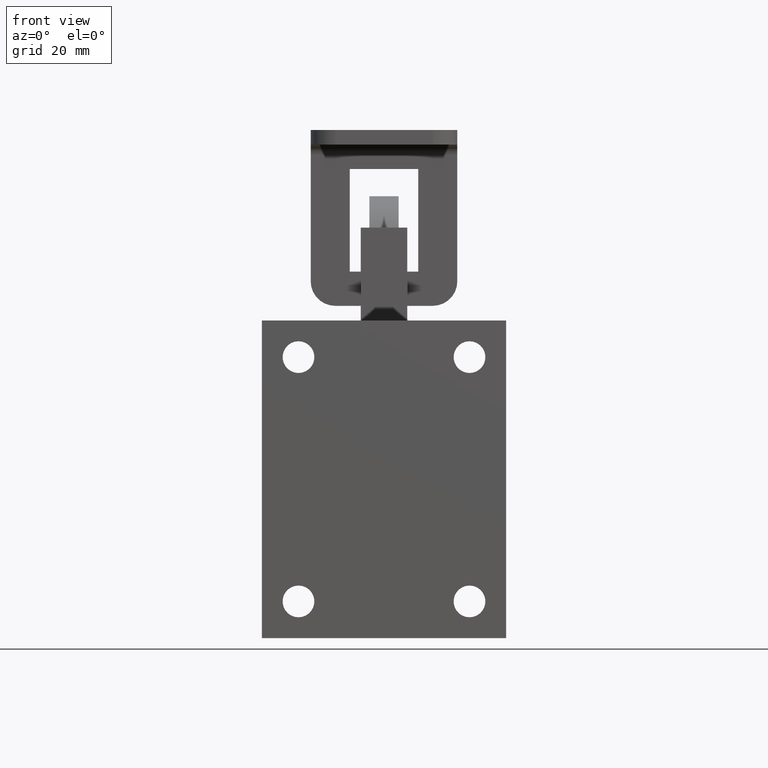
[diagram: clean part render]
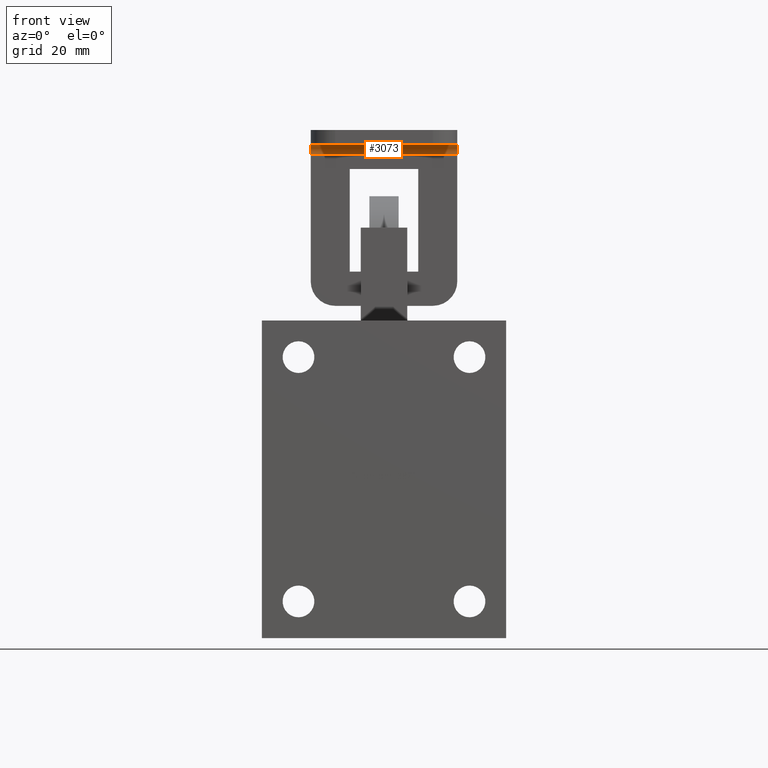
[diagram: same view with one face highlighted and labeled with its STEP entity id]
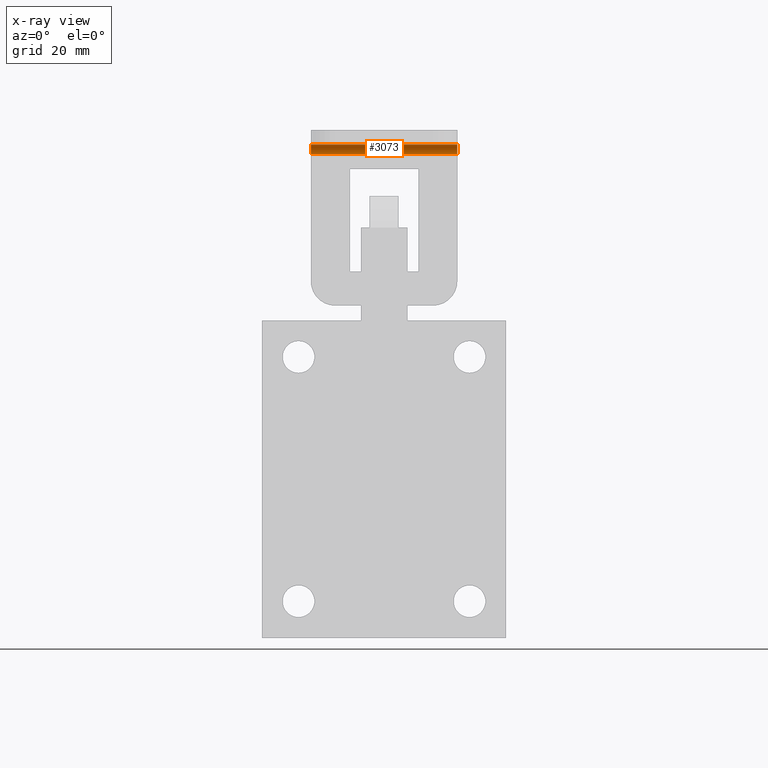
[diagram: x-ray of the same camera — body ghosted, the highlighted face saturated]
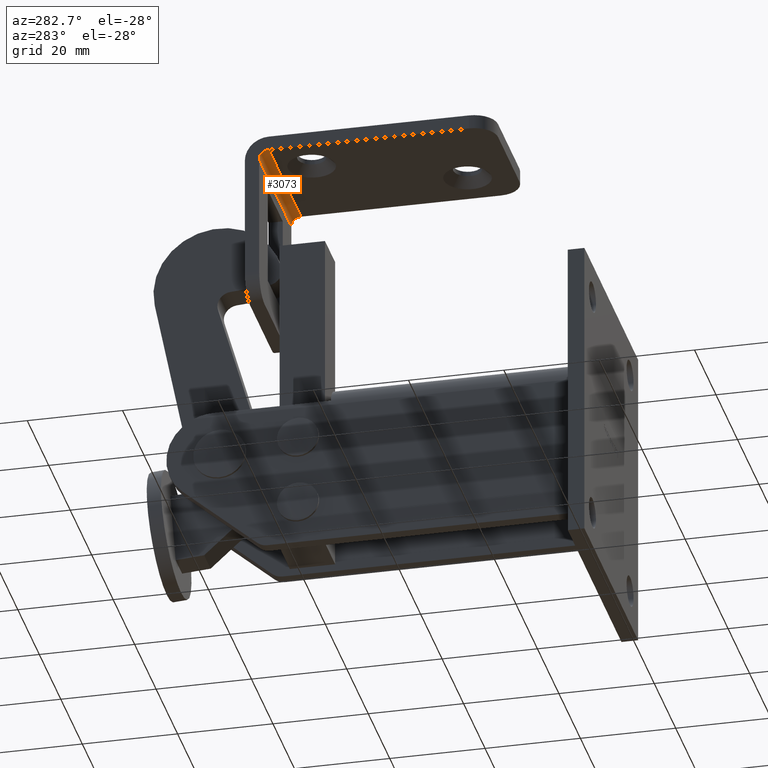
[diagram: same view with one face highlighted and labeled with its STEP entity id]
A machine part, front view. The second image highlights one B-rep face of the part: STEP entity #3073.
The next image is the same camera in x-ray: the body ghosted, the highlighted face saturated — about 0% of this face is hidden behind the body in this view.
A second angle (auxiliary view) of the same face is appended — the face is thin or edge-on in the first view.
In plain terms, the highlighted cylindrical surface (edge-blend (fillet) strip) has radius 2 mm, axis along (-1, -0, -0).
Its self-contained STEP definition (entity closure, byte-faithful):
#181 = ORIENTED_EDGE ( 'NONE', *, *, #7257, .T. ) ;
#186 = EDGE_LOOP ( 'NONE', ( #181, #558, #11065, #2278 ) ) ;
#558 = ORIENTED_EDGE ( 'NONE', *, *, #6222, .F. ) ;
#646 = CARTESIAN_POINT ( 'NONE',  ( 15.00000000000000000, 47.00000000000000000, 14.99999999999999300 ) ) ;
#683 = CARTESIAN_POINT ( 'NONE',  ( 15.00000000000000000, 48.99999999999999300, 12.99999999999999500 ) ) ;
#695 = DIRECTION ( 'NONE',  ( -1.000000000000000000, -0.0000000000000000000, 0.0000000000000000000 ) ) ;
#818 = DIRECTION ( 'NONE',  ( -1.000000000000000000, -0.0000000000000000000, -0.0000000000000000000 ) ) ;
#827 = CYLINDRICAL_SURFACE ( 'NONE', #2772, 1.999999999999996700 ) ;
#881 = CARTESIAN_POINT ( 'NONE',  ( -15.00000000000000000, 47.00000000000000000, 14.99999999999999300 ) ) ;
#918 = VERTEX_POINT ( 'NONE', #12241 ) ;
#940 = VECTOR ( 'NONE', #11391, 1000.000000000000000 ) ;
#1156 = FACE_OUTER_BOUND ( 'NONE', #186, .T. ) ;
#2278 = ORIENTED_EDGE ( 'NONE', *, *, #7746, .T. ) ;
#2512 = CIRCLE ( 'NONE', #9149, 1.999999999999996700 ) ;
#2664 = DIRECTION ( 'NONE',  ( 0.0000000000000000000, 0.0000000000000000000, 1.000000000000000000 ) ) ;
#2772 = AXIS2_PLACEMENT_3D ( 'NONE', #9948, #818, #12075 ) ;
#2938 = DIRECTION ( 'NONE',  ( -1.000000000000000000, -0.0000000000000000000, 0.0000000000000000000 ) ) ;
#3073 = ADVANCED_FACE ( 'NONE', ( #1156 ), #827, .F. ) ;
#3643 = CARTESIAN_POINT ( 'NONE',  ( 15.00000000000000000, 47.00000000000000000, 12.99999999999999500 ) ) ;
#6157 = AXIS2_PLACEMENT_3D ( 'NONE', #3643, #695, #2664 ) ;
#6222 = EDGE_CURVE ( 'NONE', #11399, #12372, #7931, .T. ) ;
#6918 = DIRECTION ( 'NONE',  ( 0.0000000000000000000, 0.0000000000000000000, 1.000000000000000000 ) ) ;
#7257 = EDGE_CURVE ( 'NONE', #10552, #12372, #2512, .T. ) ;
#7666 = EDGE_CURVE ( 'NONE', #918, #11399, #8643, .T. ) ;
#7746 = EDGE_CURVE ( 'NONE', #918, #10552, #12477, .T. ) ;
#7931 = LINE ( 'NONE', #9197, #940 ) ;
#8354 = CARTESIAN_POINT ( 'NONE',  ( -15.00000000000000000, 48.99999999999999300, 12.99999999999999500 ) ) ;
#8643 = CIRCLE ( 'NONE', #6157, 1.999999999999996700 ) ;
#9149 = AXIS2_PLACEMENT_3D ( 'NONE', #12022, #2938, #6918 ) ;
#9197 = CARTESIAN_POINT ( 'NONE',  ( 15.00000000000000000, 48.99999999999999300, 12.99999999999999500 ) ) ;
#9948 = CARTESIAN_POINT ( 'NONE',  ( 15.00000000000000000, 47.00000000000000000, 12.99999999999999500 ) ) ;
#10552 = VERTEX_POINT ( 'NONE', #881 ) ;
#11065 = ORIENTED_EDGE ( 'NONE', *, *, #7666, .F. ) ;
#11359 = VECTOR ( 'NONE', #12186, 1000.000000000000000 ) ;
#11391 = DIRECTION ( 'NONE',  ( -1.000000000000000000, -0.0000000000000000000, -0.0000000000000000000 ) ) ;
#11399 = VERTEX_POINT ( 'NONE', #683 ) ;
#12022 = CARTESIAN_POINT ( 'NONE',  ( -15.00000000000000000, 47.00000000000000000, 12.99999999999999500 ) ) ;
#12075 = DIRECTION ( 'NONE',  ( 0.0000000000000000000, 0.0000000000000000000, 1.000000000000000000 ) ) ;
#12186 = DIRECTION ( 'NONE',  ( -1.000000000000000000, -0.0000000000000000000, -0.0000000000000000000 ) ) ;
#12241 = CARTESIAN_POINT ( 'NONE',  ( 15.00000000000000000, 47.00000000000000000, 14.99999999999999300 ) ) ;
#12372 = VERTEX_POINT ( 'NONE', #8354 ) ;
#12477 = LINE ( 'NONE', #646, #11359 ) ;